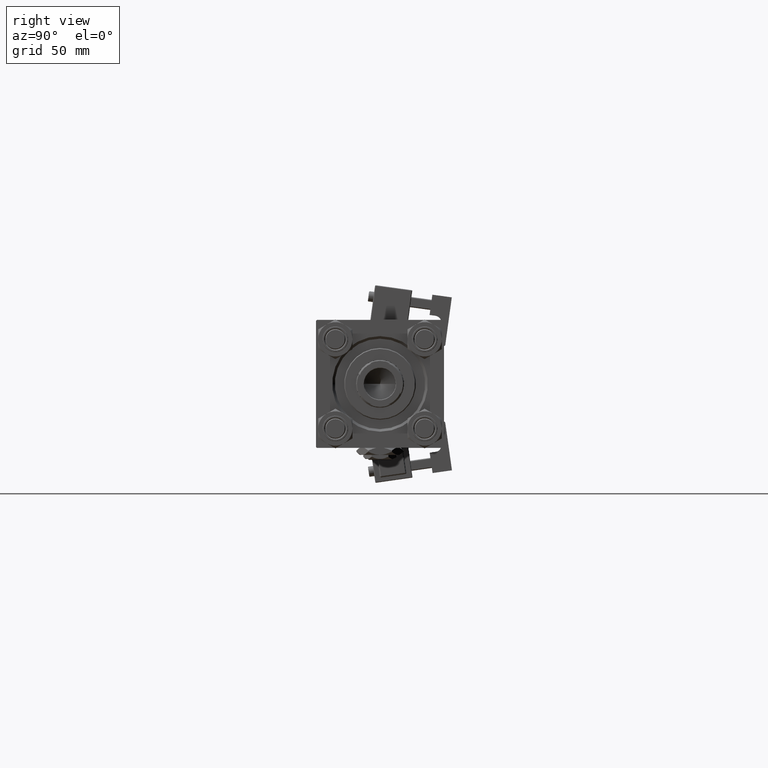
[diagram: clean part render]
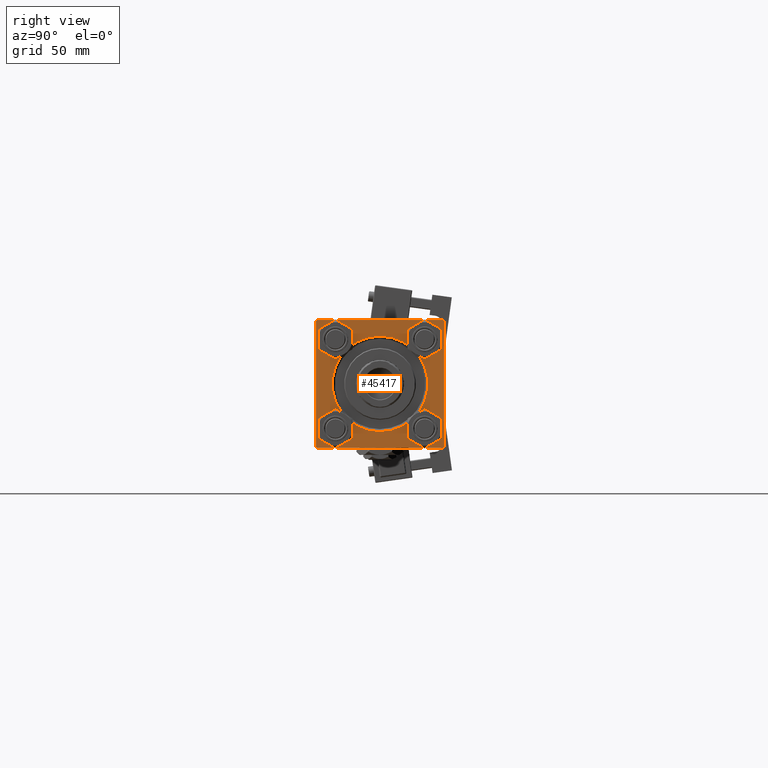
[diagram: same view with one face highlighted and labeled with its STEP entity id]
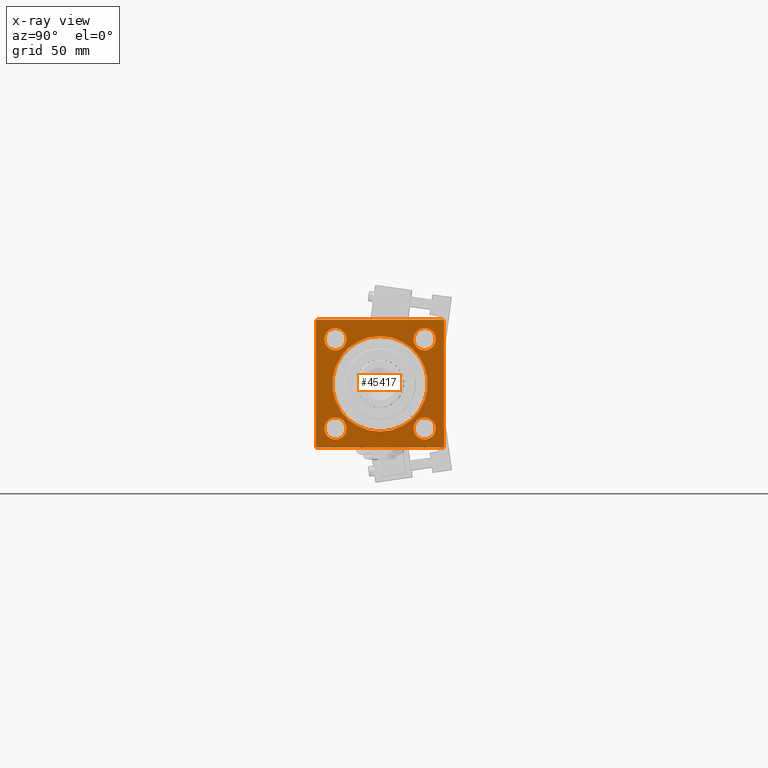
[diagram: x-ray of the same camera — body ghosted, the highlighted face saturated]
A machine part, right view. The second image highlights one B-rep face of the part: STEP entity #45417.
The next image is the same camera in x-ray: the body ghosted, the highlighted face saturated — about 0% of this face is hidden behind the body in this view.
In plain terms, the highlighted planar face has unit normal (-1, 0, 0).
Its self-contained STEP definition (entity closure, byte-faithful):
#82 = CARTESIAN_POINT ( 'NONE',  ( 333.9999999999999432, 0.000000000000000000, 0.000000000000000000 ) ) ;
#349 = DIRECTION ( 'NONE',  ( -1.000000000000000000, -0.000000000000000000, 0.000000000000000000 ) ) ;
#1681 = AXIS2_PLACEMENT_3D ( 'NONE', #26744, #22123, #30847 ) ;
#1756 = CARTESIAN_POINT ( 'NONE',  ( 333.9999999999999432, 37.00000000000000000, 37.49999999999999289 ) ) ;
#2358 = CARTESIAN_POINT ( 'NONE',  ( 333.9999999999999432, -37.50000000000000000, 37.00000000000000711 ) ) ;
#2838 = CIRCLE ( 'NONE', #36799, 6.499999999999974243 ) ;
#3449 = CARTESIAN_POINT ( 'NONE',  ( 333.9999999999999432, -26.14999999999999147, -19.65000000000003411 ) ) ;
#4306 = EDGE_CURVE ( 'NONE', #22306, #44497, #43482, .T. ) ;
#4454 = CIRCLE ( 'NONE', #28813, 6.500000000000030198 ) ;
#4606 = DIRECTION ( 'NONE',  ( 0.000000000000000000, 0.000000000000000000, 1.000000000000000000 ) ) ;
#5239 = VERTEX_POINT ( 'NONE', #52281 ) ;
#5254 = CARTESIAN_POINT ( 'NONE',  ( 333.9999999999999432, 26.14999999999999858, -26.15000000000000213 ) ) ;
#6245 = CARTESIAN_POINT ( 'NONE',  ( 333.9999999999999432, 0.000000000000000000, 0.000000000000000000 ) ) ;
#6285 = VERTEX_POINT ( 'NONE', #20792 ) ;
#6607 = CIRCLE ( 'NONE', #40610, 6.499999999999974243 ) ;
#6856 = VECTOR ( 'NONE', #14440, 1000.000000000000000 ) ;
#6929 = AXIS2_PLACEMENT_3D ( 'NONE', #33614, #50259, #16431 ) ;
#6963 = CARTESIAN_POINT ( 'NONE',  ( 333.9999999999999432, 37.50000000000000000, 37.49999999999999289 ) ) ;
#6977 = CIRCLE ( 'NONE', #37452, 6.499999999999974243 ) ;
#7395 = EDGE_CURVE ( 'NONE', #45164, #35017, #24013, .T. ) ;
#7582 = AXIS2_PLACEMENT_3D ( 'NONE', #45338, #27606, #23519 ) ;
#7616 = CIRCLE ( 'NONE', #21548, 6.499999999999974243 ) ;
#7990 = EDGE_CURVE ( 'NONE', #5239, #6285, #4454, .T. ) ;
#8537 = DIRECTION ( 'NONE',  ( 0.000000000000000000, 0.000000000000000000, 1.000000000000000000 ) ) ;
#9514 = ORIENTED_EDGE ( 'NONE', *, *, #11268, .T. ) ;
#9826 = CARTESIAN_POINT ( 'NONE',  ( 333.9999999999999432, 26.14999999999999858, -19.65000000000002700 ) ) ;
#10075 = DIRECTION ( 'NONE',  ( 0.000000000000000000, 0.000000000000000000, 1.000000000000000000 ) ) ;
#10340 = FACE_BOUND ( 'NONE', #29336, .T. ) ;
#10346 = CARTESIAN_POINT ( 'NONE',  ( 333.9999999999999432, 26.14999999999999858, 26.15000000000000213 ) ) ;
#10609 = DIRECTION ( 'NONE',  ( 0.000000000000000000, 0.000000000000000000, 1.000000000000000000 ) ) ;
#10651 = ORIENTED_EDGE ( 'NONE', *, *, #25689, .F. ) ;
#11268 = EDGE_CURVE ( 'NONE', #50993, #16367, #2838, .T. ) ;
#11770 = CARTESIAN_POINT ( 'NONE',  ( 333.9999999999999432, 37.50000000000000000, -36.99999999999999289 ) ) ;
#12101 = EDGE_LOOP ( 'NONE', ( #47841, #21547 ) ) ;
#12546 = VERTEX_POINT ( 'NONE', #41738 ) ;
#13082 = CIRCLE ( 'NONE', #6929, 6.499999999999974243 ) ;
#13400 = EDGE_LOOP ( 'NONE', ( #37516, #50933 ) ) ;
#13813 = VERTEX_POINT ( 'NONE', #9826 ) ;
#14249 = ORIENTED_EDGE ( 'NONE', *, *, #46093, .T. ) ;
#14323 = VERTEX_POINT ( 'NONE', #46743 ) ;
#14433 = FACE_BOUND ( 'NONE', #34433, .T. ) ;
#14440 = DIRECTION ( 'NONE',  ( 0.000000000000000000, -9.251858538542972814E-17, -1.000000000000000000 ) ) ;
#14702 = FACE_BOUND ( 'NONE', #13400, .T. ) ;
#15427 = DIRECTION ( 'NONE',  ( 0.000000000000000000, 0.000000000000000000, 1.000000000000000000 ) ) ;
#15458 = VECTOR ( 'NONE', #28294, 1000.000000000000000 ) ;
#15525 = VERTEX_POINT ( 'NONE', #2358 ) ;
#15595 = CARTESIAN_POINT ( 'NONE',  ( 333.9999999999999432, 37.00000000000000000, 37.49999999999999289 ) ) ;
#15611 = DIRECTION ( 'NONE',  ( -1.000000000000000000, -0.000000000000000000, 0.000000000000000000 ) ) ;
#15865 = DIRECTION ( 'NONE',  ( 0.000000000000000000, -1.000000000000000000, -1.850371707708594316E-16 ) ) ;
#15873 = VERTEX_POINT ( 'NONE', #1756 ) ;
#16094 = DIRECTION ( 'NONE',  ( 0.000000000000000000, 0.7071067811865279218, -0.7071067811865671127 ) ) ;
#16144 = DIRECTION ( 'NONE',  ( 0.000000000000000000, 0.000000000000000000, 1.000000000000000000 ) ) ;
#16284 = CARTESIAN_POINT ( 'NONE',  ( 333.9999999999999432, 37.50000000000000000, -36.99999999999999289 ) ) ;
#16367 = VERTEX_POINT ( 'NONE', #29738 ) ;
#16431 = DIRECTION ( 'NONE',  ( 0.000000000000000000, 0.000000000000000000, 1.000000000000000000 ) ) ;
#16728 = DIRECTION ( 'NONE',  ( 0.000000000000000000, 0.000000000000000000, 1.000000000000000000 ) ) ;
#16883 = CARTESIAN_POINT ( 'NONE',  ( 333.9999999999999432, 26.14999999999999858, -26.15000000000000213 ) ) ;
#18425 = DIRECTION ( 'NONE',  ( -1.000000000000000000, -0.000000000000000000, 0.000000000000000000 ) ) ;
#18916 = AXIS2_PLACEMENT_3D ( 'NONE', #51983, #18425, #52795 ) ;
#19081 = CIRCLE ( 'NONE', #42606, 27.99999999999994316 ) ;
#19519 = CARTESIAN_POINT ( 'NONE',  ( 333.9999999999999432, -26.14999999999999147, 26.15000000000000924 ) ) ;
#20006 = VECTOR ( 'NONE', #50145, 1000.000000000000000 ) ;
#20559 = LINE ( 'NONE', #33116, #39827 ) ;
#20728 = ORIENTED_EDGE ( 'NONE', *, *, #34896, .T. ) ;
#20792 = CARTESIAN_POINT ( 'NONE',  ( 333.9999999999999432, -26.14999999999999147, 32.65000000000004832 ) ) ;
#21343 = DIRECTION ( 'NONE',  ( -1.000000000000000000, -0.000000000000000000, 0.000000000000000000 ) ) ;
#21547 = ORIENTED_EDGE ( 'NONE', *, *, #46578, .T. ) ;
#21548 = AXIS2_PLACEMENT_3D ( 'NONE', #16883, #29698, #4606 ) ;
#22123 = DIRECTION ( 'NONE',  ( -1.000000000000000000, -0.000000000000000000, 0.000000000000000000 ) ) ;
#22306 = VERTEX_POINT ( 'NONE', #22677 ) ;
#22677 = CARTESIAN_POINT ( 'NONE',  ( 333.9999999999999432, 26.14999999999999858, 19.65000000000002345 ) ) ;
#22978 = DIRECTION ( 'NONE',  ( 0.000000000000000000, -0.7071067811865279218, 0.7071067811865672237 ) ) ;
#23059 = DIRECTION ( 'NONE',  ( 0.000000000000000000, 0.000000000000000000, -1.000000000000000000 ) ) ;
#23162 = EDGE_CURVE ( 'NONE', #44497, #22306, #6607, .T. ) ;
#23378 = VERTEX_POINT ( 'NONE', #36180 ) ;
#23519 = DIRECTION ( 'NONE',  ( 0.000000000000000000, 0.000000000000000000, 1.000000000000000000 ) ) ;
#24013 = LINE ( 'NONE', #32999, #32297 ) ;
#24079 = VERTEX_POINT ( 'NONE', #39749 ) ;
#24147 = CARTESIAN_POINT ( 'NONE',  ( 333.9999999999999432, 26.14999999999999858, 32.64999999999998437 ) ) ;
#24653 = ORIENTED_EDGE ( 'NONE', *, *, #37822, .T. ) ;
#24925 = DIRECTION ( 'NONE',  ( 0.000000000000000000, -1.000000000000000000, 0.000000000000000000 ) ) ;
#24981 = EDGE_CURVE ( 'NONE', #24079, #14323, #27598, .T. ) ;
#25240 = VECTOR ( 'NONE', #15865, 1000.000000000000000 ) ;
#25605 = EDGE_CURVE ( 'NONE', #6285, #5239, #42430, .T. ) ;
#25689 = EDGE_CURVE ( 'NONE', #12546, #35017, #20559, .T. ) ;
#26487 = EDGE_CURVE ( 'NONE', #23378, #13813, #7616, .T. ) ;
#26744 = CARTESIAN_POINT ( 'NONE',  ( 333.9999999999999432, 26.14999999999999858, 26.15000000000000213 ) ) ;
#26973 = FACE_OUTER_BOUND ( 'NONE', #37950, .T. ) ;
#27110 = EDGE_CURVE ( 'NONE', #51502, #47793, #52804, .T. ) ;
#27304 = CARTESIAN_POINT ( 'NONE',  ( 333.9999999999999432, -37.00000000000000000, 37.49999999999997868 ) ) ;
#27598 = CIRCLE ( 'NONE', #7582, 27.99999999999994316 ) ;
#27606 = DIRECTION ( 'NONE',  ( -1.000000000000000000, -0.000000000000000000, 0.000000000000000000 ) ) ;
#28294 = DIRECTION ( 'NONE',  ( -0.000000000000000000, 0.7071067811865622277, 0.7071067811865328068 ) ) ;
#28813 = AXIS2_PLACEMENT_3D ( 'NONE', #19519, #44633, #15427 ) ;
#29097 = LINE ( 'NONE', #16284, #15458 ) ;
#29336 = EDGE_LOOP ( 'NONE', ( #50542, #48522 ) ) ;
#29499 = CARTESIAN_POINT ( 'NONE',  ( 333.9999999999999432, 37.50000000000000000, 36.99999999999996447 ) ) ;
#29698 = DIRECTION ( 'NONE',  ( -1.000000000000000000, -0.000000000000000000, 0.000000000000000000 ) ) ;
#29738 = CARTESIAN_POINT ( 'NONE',  ( 333.9999999999999432, -26.14999999999999147, -32.64999999999998437 ) ) ;
#30183 = ORIENTED_EDGE ( 'NONE', *, *, #7395, .T. ) ;
#30847 = DIRECTION ( 'NONE',  ( 0.000000000000000000, 0.000000000000000000, 1.000000000000000000 ) ) ;
#31067 = FACE_BOUND ( 'NONE', #12101, .T. ) ;
#32234 = LINE ( 'NONE', #35796, #25240 ) ;
#32297 = VECTOR ( 'NONE', #16094, 1000.000000000000000 ) ;
#32492 = ORIENTED_EDGE ( 'NONE', *, *, #27110, .F. ) ;
#32993 = ORIENTED_EDGE ( 'NONE', *, *, #4306, .T. ) ;
#32999 = CARTESIAN_POINT ( 'NONE',  ( 333.9999999999999432, -37.00000000000001421, -37.50000000000000000 ) ) ;
#33116 = CARTESIAN_POINT ( 'NONE',  ( 333.9999999999999432, 37.50000000000000000, -37.50000000000000000 ) ) ;
#33614 = CARTESIAN_POINT ( 'NONE',  ( 333.9999999999999432, -26.14999999999999147, -26.15000000000000924 ) ) ;
#33759 = CARTESIAN_POINT ( 'NONE',  ( 333.9999999999999432, -37.50000000000000000, 37.00000000000000711 ) ) ;
#34433 = EDGE_LOOP ( 'NONE', ( #40094, #9514 ) ) ;
#34896 = EDGE_CURVE ( 'NONE', #51502, #15873, #52990, .T. ) ;
#34905 = EDGE_CURVE ( 'NONE', #15873, #38377, #32234, .T. ) ;
#35017 = VERTEX_POINT ( 'NONE', #39016 ) ;
#35175 = ORIENTED_EDGE ( 'NONE', *, *, #40664, .T. ) ;
#35438 = DIRECTION ( 'NONE',  ( -1.000000000000000000, -0.000000000000000000, 0.000000000000000000 ) ) ;
#35796 = CARTESIAN_POINT ( 'NONE',  ( 333.9999999999999432, 37.50000000000000000, 37.49999999999999289 ) ) ;
#36180 = CARTESIAN_POINT ( 'NONE',  ( 333.9999999999999432, 26.14999999999999858, -32.64999999999997726 ) ) ;
#36799 = AXIS2_PLACEMENT_3D ( 'NONE', #53005, #15611, #16144 ) ;
#37111 = CARTESIAN_POINT ( 'NONE',  ( 333.9999999999999432, -37.50000000000000711, -36.99999999999997868 ) ) ;
#37248 = VECTOR ( 'NONE', #23059, 1000.000000000000000 ) ;
#37452 = AXIS2_PLACEMENT_3D ( 'NONE', #5254, #21343, #8537 ) ;
#37516 = ORIENTED_EDGE ( 'NONE', *, *, #7990, .T. ) ;
#37822 = EDGE_CURVE ( 'NONE', #12546, #47793, #29097, .T. ) ;
#37950 = EDGE_LOOP ( 'NONE', ( #35175, #30183, #10651, #24653, #32492, #20728, #53016, #14249 ) ) ;
#38377 = VERTEX_POINT ( 'NONE', #27304 ) ;
#39016 = CARTESIAN_POINT ( 'NONE',  ( 333.9999999999999432, -37.00000000000001421, -37.50000000000000000 ) ) ;
#39749 = CARTESIAN_POINT ( 'NONE',  ( 333.9999999999999432, 3.429011037612582176E-15, 27.99999999999994316 ) ) ;
#39827 = VECTOR ( 'NONE', #24925, 1000.000000000000000 ) ;
#40094 = ORIENTED_EDGE ( 'NONE', *, *, #44857, .T. ) ;
#40610 = AXIS2_PLACEMENT_3D ( 'NONE', #10346, #47460, #10075 ) ;
#40664 = EDGE_CURVE ( 'NONE', #15525, #45164, #47461, .T. ) ;
#40951 = VECTOR ( 'NONE', #22978, 1000.000000000000000 ) ;
#41248 = EDGE_CURVE ( 'NONE', #14323, #24079, #19081, .T. ) ;
#41738 = CARTESIAN_POINT ( 'NONE',  ( 333.9999999999999432, 36.99999999999997158, -37.50000000000000000 ) ) ;
#42430 = CIRCLE ( 'NONE', #18916, 6.500000000000030198 ) ;
#42606 = AXIS2_PLACEMENT_3D ( 'NONE', #82, #349, #16728 ) ;
#42768 = LINE ( 'NONE', #33759, #20006 ) ;
#43366 = CARTESIAN_POINT ( 'NONE',  ( 333.9999999999999432, -37.50000000000000000, 37.49999999999997868 ) ) ;
#43482 = CIRCLE ( 'NONE', #1681, 6.499999999999974243 ) ;
#43629 = ORIENTED_EDGE ( 'NONE', *, *, #23162, .T. ) ;
#43904 = PLANE ( 'NONE',  #47128 ) ;
#44497 = VERTEX_POINT ( 'NONE', #24147 ) ;
#44633 = DIRECTION ( 'NONE',  ( -1.000000000000000000, -0.000000000000000000, 0.000000000000000000 ) ) ;
#44857 = EDGE_CURVE ( 'NONE', #16367, #50993, #13082, .T. ) ;
#45164 = VERTEX_POINT ( 'NONE', #37111 ) ;
#45338 = CARTESIAN_POINT ( 'NONE',  ( 333.9999999999999432, 0.000000000000000000, 0.000000000000000000 ) ) ;
#45417 = ADVANCED_FACE ( 'NONE', ( #14433, #31067, #47717, #14702, #10340, #26973 ), #43904, .F. ) ;
#46093 = EDGE_CURVE ( 'NONE', #38377, #15525, #42768, .T. ) ;
#46578 = EDGE_CURVE ( 'NONE', #13813, #23378, #6977, .T. ) ;
#46743 = CARTESIAN_POINT ( 'NONE',  ( 333.9999999999999432, 0.000000000000000000, -27.99999999999994316 ) ) ;
#47128 = AXIS2_PLACEMENT_3D ( 'NONE', #6245, #35438, #10609 ) ;
#47460 = DIRECTION ( 'NONE',  ( -1.000000000000000000, -0.000000000000000000, 0.000000000000000000 ) ) ;
#47461 = LINE ( 'NONE', #43366, #6856 ) ;
#47717 = FACE_BOUND ( 'NONE', #49535, .T. ) ;
#47793 = VERTEX_POINT ( 'NONE', #11770 ) ;
#47841 = ORIENTED_EDGE ( 'NONE', *, *, #26487, .T. ) ;
#48522 = ORIENTED_EDGE ( 'NONE', *, *, #24981, .T. ) ;
#49535 = EDGE_LOOP ( 'NONE', ( #32993, #43629 ) ) ;
#50145 = DIRECTION ( 'NONE',  ( -0.000000000000000000, -0.7071067811865671127, -0.7071067811865279218 ) ) ;
#50259 = DIRECTION ( 'NONE',  ( -1.000000000000000000, -0.000000000000000000, 0.000000000000000000 ) ) ;
#50542 = ORIENTED_EDGE ( 'NONE', *, *, #41248, .T. ) ;
#50933 = ORIENTED_EDGE ( 'NONE', *, *, #25605, .T. ) ;
#50993 = VERTEX_POINT ( 'NONE', #3449 ) ;
#51502 = VERTEX_POINT ( 'NONE', #29499 ) ;
#51983 = CARTESIAN_POINT ( 'NONE',  ( 333.9999999999999432, -26.14999999999999147, 26.15000000000000924 ) ) ;
#52281 = CARTESIAN_POINT ( 'NONE',  ( 333.9999999999999432, -26.14999999999999147, 19.64999999999997726 ) ) ;
#52795 = DIRECTION ( 'NONE',  ( 0.000000000000000000, 0.000000000000000000, 1.000000000000000000 ) ) ;
#52804 = LINE ( 'NONE', #6963, #37248 ) ;
#52990 = LINE ( 'NONE', #15595, #40951 ) ;
#53005 = CARTESIAN_POINT ( 'NONE',  ( 333.9999999999999432, -26.14999999999999147, -26.15000000000000924 ) ) ;
#53016 = ORIENTED_EDGE ( 'NONE', *, *, #34905, .T. ) ;